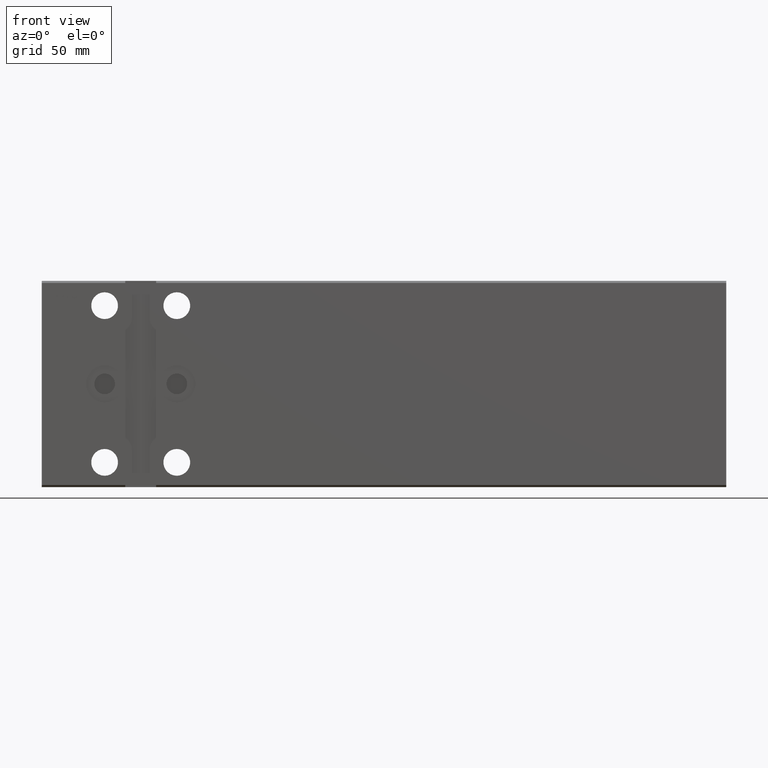
[diagram: clean part render]
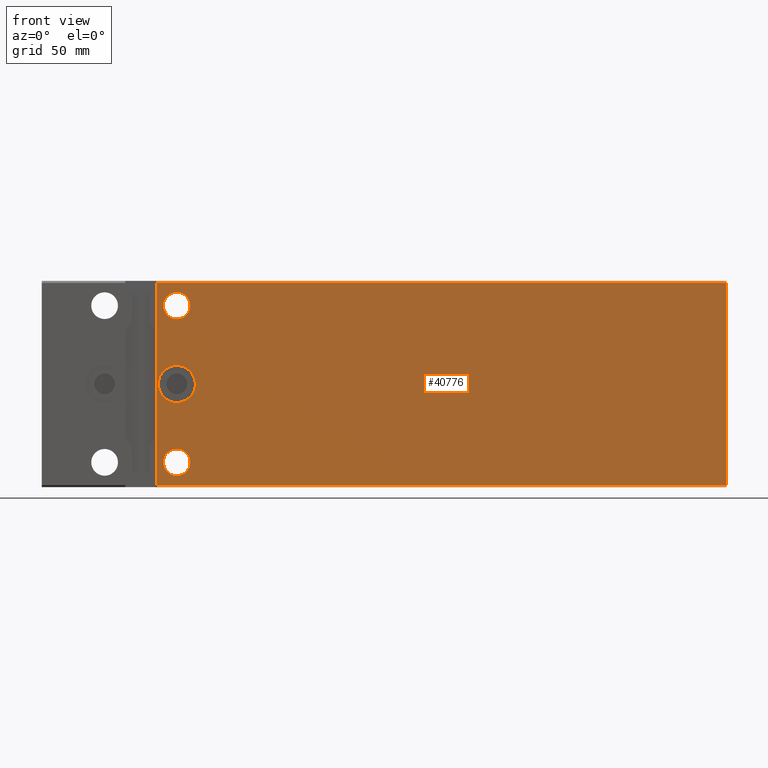
[diagram: same view with one face highlighted and labeled with its STEP entity id]
A machine part, front view. The second image highlights one B-rep face of the part: STEP entity #40776.
In plain terms, the highlighted planar face has unit normal (-0, 1, 0).
Its self-contained STEP definition (entity closure, byte-faithful):
#319 = LINE ( 'NONE', #25647, #40769 ) ;
#653 = DIRECTION ( 'NONE',  ( 0.000000000000000000, 0.000000000000000000, -1.000000000000000000 ) ) ;
#766 = VERTEX_POINT ( 'NONE', #35099 ) ;
#982 = CIRCLE ( 'NONE', #19418, 6.499999999999999112 ) ;
#1641 = CARTESIAN_POINT ( 'NONE',  ( 65.50000000000001421, -37.50000000000001421, -44.50000000000000000 ) ) ;
#2171 = DIRECTION ( 'NONE',  ( 0.000000000000000000, -1.000000000000000000, -0.000000000000000000 ) ) ;
#2502 = ORIENTED_EDGE ( 'NONE', *, *, #36371, .T. ) ;
#2641 = ORIENTED_EDGE ( 'NONE', *, *, #13585, .T. ) ;
#2644 = AXIS2_PLACEMENT_3D ( 'NONE', #3271, #28194, #15838 ) ;
#2734 = VECTOR ( 'NONE', #653, 1000.000000000000000 ) ;
#3005 = ORIENTED_EDGE ( 'NONE', *, *, #4743, .F. ) ;
#3271 = CARTESIAN_POINT ( 'NONE',  ( 65.50000000000000000, -37.50000000000001421, 38.00000000000000000 ) ) ;
#3843 = CARTESIAN_POINT ( 'NONE',  ( 65.50000000000001421, -37.50000000000001421, -9.000000000000000000 ) ) ;
#4443 = VERTEX_POINT ( 'NONE', #25962 ) ;
#4743 = EDGE_CURVE ( 'NONE', #16349, #34871, #9867, .T. ) ;
#6272 = ORIENTED_EDGE ( 'NONE', *, *, #34490, .F. ) ;
#7025 = CARTESIAN_POINT ( 'NONE',  ( 65.50000000000000000, -37.50000000000001421, 31.50000000000000000 ) ) ;
#7277 = DIRECTION ( 'NONE',  ( -3.469446951953615175E-16, -0.000000000000000000, 1.000000000000000000 ) ) ;
#7430 = VERTEX_POINT ( 'NONE', #32992 ) ;
#7459 = DIRECTION ( 'NONE',  ( 0.000000000000000000, 0.000000000000000000, 1.000000000000000000 ) ) ;
#7507 = DIRECTION ( 'NONE',  ( 0.000000000000000000, 0.000000000000000000, 1.000000000000000000 ) ) ;
#7619 = VERTEX_POINT ( 'NONE', #35425 ) ;
#7941 = CARTESIAN_POINT ( 'NONE',  ( 65.50000000000000000, -37.50000000000001421, 38.00000000000000000 ) ) ;
#7970 = ORIENTED_EDGE ( 'NONE', *, *, #18148, .T. ) ;
#8089 = EDGE_CURVE ( 'NONE', #4443, #33177, #319, .T. ) ;
#8154 = EDGE_LOOP ( 'NONE', ( #25500, #3005 ) ) ;
#8554 = FACE_BOUND ( 'NONE', #8154, .T. ) ;
#9867 = CIRCLE ( 'NONE', #2644, 6.499999999999999112 ) ;
#10347 = DIRECTION ( 'NONE',  ( -0.000000000000000000, 1.000000000000000000, 5.507058653894625853E-17 ) ) ;
#10370 = LINE ( 'NONE', #22934, #36550 ) ;
#11235 = DIRECTION ( 'NONE',  ( 0.000000000000000000, 0.000000000000000000, 1.000000000000000000 ) ) ;
#11440 = CARTESIAN_POINT ( 'NONE',  ( 332.0000000000000000, -37.50000000000001421, 48.99999999999998579 ) ) ;
#11974 = EDGE_CURVE ( 'NONE', #4443, #7619, #28867, .T. ) ;
#12221 = CARTESIAN_POINT ( 'NONE',  ( 65.50000000000001421, -37.50000000000001421, -38.00000000000000000 ) ) ;
#12376 = VERTEX_POINT ( 'NONE', #21582 ) ;
#12500 = VERTEX_POINT ( 'NONE', #3843 ) ;
#13274 = EDGE_LOOP ( 'NONE', ( #33540, #21569, #6272, #26423 ) ) ;
#13585 = EDGE_CURVE ( 'NONE', #12500, #7430, #38261, .T. ) ;
#13871 = LINE ( 'NONE', #38998, #28662 ) ;
#15838 = DIRECTION ( 'NONE',  ( 0.000000000000000000, 0.000000000000000000, 1.000000000000000000 ) ) ;
#16239 = VERTEX_POINT ( 'NONE', #1641 ) ;
#16280 = AXIS2_PLACEMENT_3D ( 'NONE', #7941, #2171, #11235 ) ;
#16349 = VERTEX_POINT ( 'NONE', #17918 ) ;
#17824 = DIRECTION ( 'NONE',  ( -0.000000000000000000, 1.000000000000000000, 0.000000000000000000 ) ) ;
#17918 = CARTESIAN_POINT ( 'NONE',  ( 65.50000000000000000, -37.50000000000001421, 44.50000000000000000 ) ) ;
#18148 = EDGE_CURVE ( 'NONE', #766, #16239, #40441, .T. ) ;
#19418 = AXIS2_PLACEMENT_3D ( 'NONE', #12221, #24975, #34647 ) ;
#19543 = ORIENTED_EDGE ( 'NONE', *, *, #20733, .T. ) ;
#20124 = AXIS2_PLACEMENT_3D ( 'NONE', #38616, #26241, #7507 ) ;
#20333 = EDGE_LOOP ( 'NONE', ( #19543, #7970 ) ) ;
#20733 = EDGE_CURVE ( 'NONE', #16239, #766, #982, .T. ) ;
#21110 = FACE_BOUND ( 'NONE', #33039, .T. ) ;
#21569 = ORIENTED_EDGE ( 'NONE', *, *, #34534, .F. ) ;
#21582 = CARTESIAN_POINT ( 'NONE',  ( 55.50000000000003553, -37.50000000000001421, -48.99999999999997158 ) ) ;
#22934 = CARTESIAN_POINT ( 'NONE',  ( 55.50000000000000000, -37.50000000000001421, 49.99999999999998579 ) ) ;
#23318 = AXIS2_PLACEMENT_3D ( 'NONE', #23473, #35827, #26139 ) ;
#23473 = CARTESIAN_POINT ( 'NONE',  ( 65.50000000000001421, -37.50000000000001421, -38.00000000000000000 ) ) ;
#23529 = AXIS2_PLACEMENT_3D ( 'NONE', #11440, #17824, #39451 ) ;
#23800 = AXIS2_PLACEMENT_3D ( 'NONE', #38569, #10347, #7459 ) ;
#24975 = DIRECTION ( 'NONE',  ( -0.000000000000000000, 1.000000000000000000, 0.000000000000000000 ) ) ;
#25500 = ORIENTED_EDGE ( 'NONE', *, *, #40788, .F. ) ;
#25647 = CARTESIAN_POINT ( 'NONE',  ( 332.0000000000000000, -37.50000000000001421, 48.99999999999998579 ) ) ;
#25962 = CARTESIAN_POINT ( 'NONE',  ( 332.0000000000000000, -37.50000000000001421, 48.99999999999998579 ) ) ;
#26139 = DIRECTION ( 'NONE',  ( 0.000000000000000000, 0.000000000000000000, 1.000000000000000000 ) ) ;
#26241 = DIRECTION ( 'NONE',  ( -0.000000000000000000, 1.000000000000000000, 5.507058653894625853E-17 ) ) ;
#26423 = ORIENTED_EDGE ( 'NONE', *, *, #11974, .F. ) ;
#28194 = DIRECTION ( 'NONE',  ( 0.000000000000000000, -1.000000000000000000, -0.000000000000000000 ) ) ;
#28662 = VECTOR ( 'NONE', #29109, 1000.000000000000000 ) ;
#28665 = CARTESIAN_POINT ( 'NONE',  ( 332.0000000000000000, -37.50000000000001421, 48.99999999999998579 ) ) ;
#28773 = CIRCLE ( 'NONE', #16280, 6.499999999999999112 ) ;
#28867 = LINE ( 'NONE', #28665, #2734 ) ;
#29109 = DIRECTION ( 'NONE',  ( -1.000000000000000000, -0.000000000000000000, -0.000000000000000000 ) ) ;
#32992 = CARTESIAN_POINT ( 'NONE',  ( 65.50000000000001421, -37.50000000000001421, 8.999999999999992895 ) ) ;
#33039 = EDGE_LOOP ( 'NONE', ( #2641, #2502 ) ) ;
#33177 = VERTEX_POINT ( 'NONE', #35623 ) ;
#33260 = PLANE ( 'NONE',  #23529 ) ;
#33540 = ORIENTED_EDGE ( 'NONE', *, *, #8089, .T. ) ;
#34490 = EDGE_CURVE ( 'NONE', #7619, #12376, #13871, .T. ) ;
#34534 = EDGE_CURVE ( 'NONE', #12376, #33177, #10370, .T. ) ;
#34647 = DIRECTION ( 'NONE',  ( 0.000000000000000000, 0.000000000000000000, 1.000000000000000000 ) ) ;
#34871 = VERTEX_POINT ( 'NONE', #7025 ) ;
#35099 = CARTESIAN_POINT ( 'NONE',  ( 65.50000000000001421, -37.50000000000001421, -31.50000000000000000 ) ) ;
#35124 = DIRECTION ( 'NONE',  ( -1.000000000000000000, -0.000000000000000000, -0.000000000000000000 ) ) ;
#35425 = CARTESIAN_POINT ( 'NONE',  ( 332.0000000000000000, -37.50000000000001421, -49.00000000000000000 ) ) ;
#35623 = CARTESIAN_POINT ( 'NONE',  ( 55.50000000000000000, -37.50000000000001421, 48.99999999999998579 ) ) ;
#35827 = DIRECTION ( 'NONE',  ( -0.000000000000000000, 1.000000000000000000, 0.000000000000000000 ) ) ;
#36151 = FACE_BOUND ( 'NONE', #20333, .T. ) ;
#36371 = EDGE_CURVE ( 'NONE', #7430, #12500, #37254, .T. ) ;
#36550 = VECTOR ( 'NONE', #7277, 1000.000000000000000 ) ;
#36770 = FACE_OUTER_BOUND ( 'NONE', #13274, .T. ) ;
#37254 = CIRCLE ( 'NONE', #20124, 8.999999999999996447 ) ;
#38261 = CIRCLE ( 'NONE', #23800, 8.999999999999996447 ) ;
#38569 = CARTESIAN_POINT ( 'NONE',  ( 65.50000000000001421, -37.50000000000001421, -2.652630106891489909E-15 ) ) ;
#38616 = CARTESIAN_POINT ( 'NONE',  ( 65.50000000000001421, -37.50000000000001421, -2.652630106891489909E-15 ) ) ;
#38998 = CARTESIAN_POINT ( 'NONE',  ( 332.0000000000000000, -37.50000000000001421, -49.00000000000000000 ) ) ;
#39451 = DIRECTION ( 'NONE',  ( 0.000000000000000000, -0.000000000000000000, 1.000000000000000000 ) ) ;
#40441 = CIRCLE ( 'NONE', #23318, 6.499999999999999112 ) ;
#40769 = VECTOR ( 'NONE', #35124, 1000.000000000000000 ) ;
#40776 = ADVANCED_FACE ( 'NONE', ( #21110, #36151, #36770, #8554 ), #33260, .F. ) ;
#40788 = EDGE_CURVE ( 'NONE', #34871, #16349, #28773, .T. ) ;